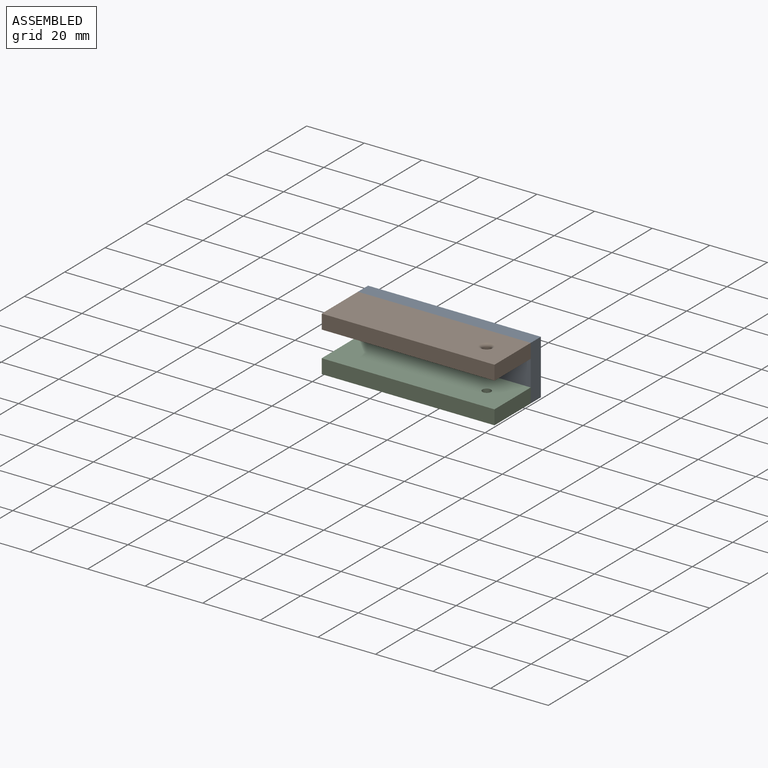
[diagram: assembled view]
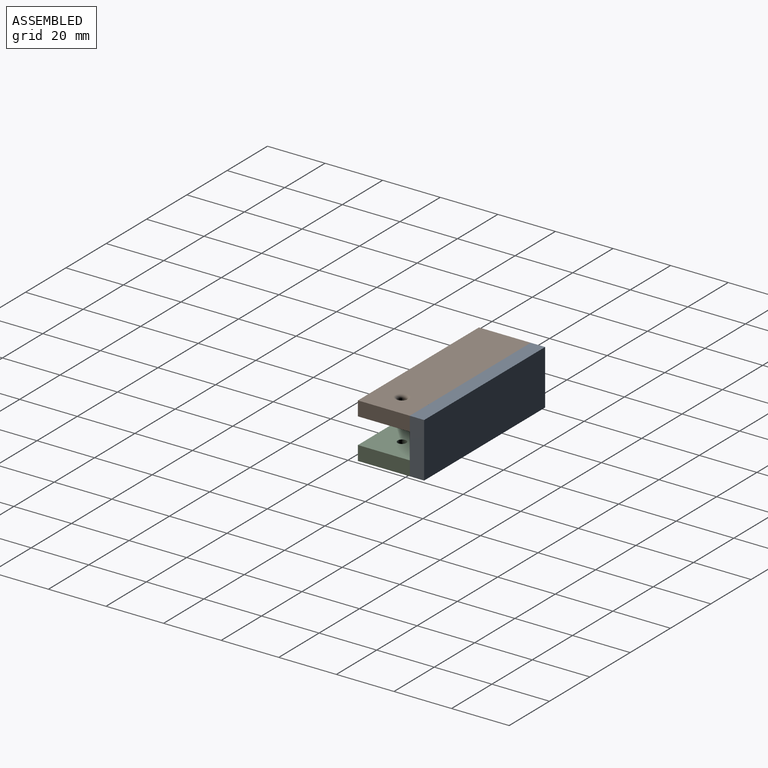
[diagram: assembled view, second angle]
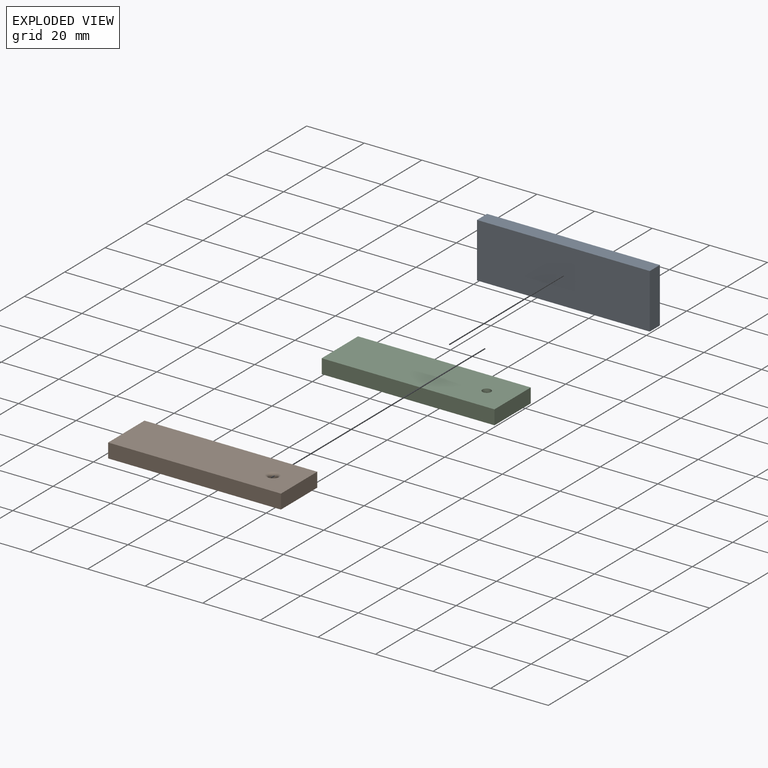
[diagram: exploded view]
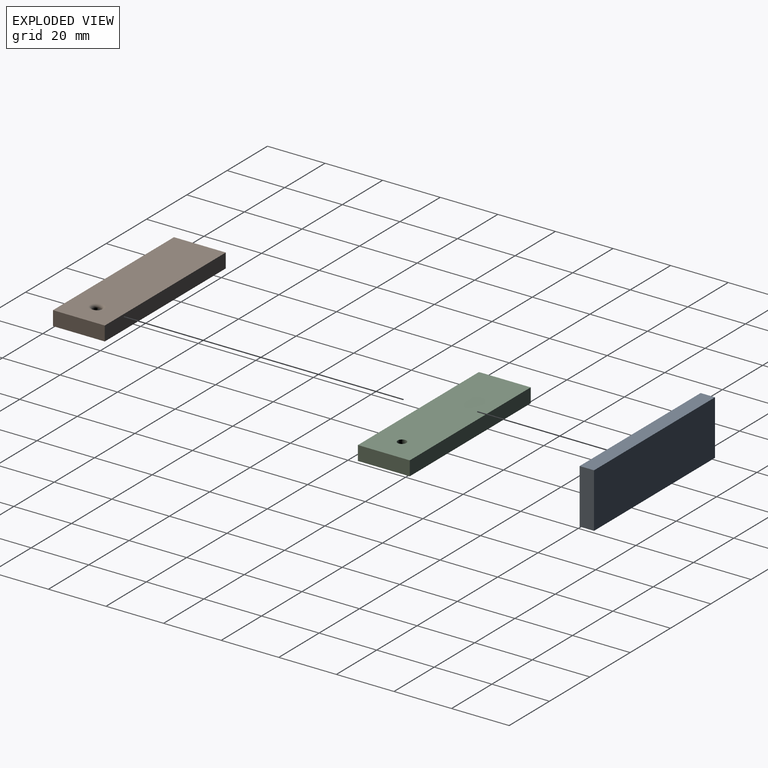
[diagram: exploded view, second angle]
ASSEMBLY  parts=3 mates=2
PART A: 6 faces, bbox 60x5x19 mm
  f0: plane 60x5mm, normal (0,0,1), area 300mm2, adj f1,f3,f4,f5
  f1: plane 19x5mm, normal (-1,0,0), area 95mm2, adj f0,f2,f4,f5
  f2: plane 60x5mm, normal (0,0,-1), area 300mm2, adj f1,f3,f4,f5
  f3: plane 19x5mm, normal (1,0,0), area 95mm2, adj f0,f2,f4,f5
  f4: plane 60x19mm, normal (0,-1,0), area 1140mm2, adj f0,f1,f2,f3
  f5: plane 60x19mm, normal (0,1,0), area 1140mm2, adj f0,f1,f2,f3
PART B: 8 faces, bbox 60x18x5 mm
  f0: plane 60x5mm, normal (0,1,0), area 300mm2, adj f1,f4,f5,f6
  f1: plane 18x5mm, normal (-1,0,0), area 90mm2, adj f0,f2,f5,f6
  f2: plane 60x5mm, normal (0,-1,0), area 300mm2, adj f1,f4,f5,f6
  f3: cylinder r=1.5mm len=4mm, axis (0,0,-1), area 37.7mm2, adj f6,f7
  f4: plane 18x5mm, normal (1,0,0), area 90mm2, adj f0,f2,f5,f6
  f5: plane 60x18mm, normal (0,0,1), area 1060.4mm2, adj f0,f1,f2,f4,f7
  f6: plane 60x18mm, normal (0,0,-1), area 1072.9mm2, adj f0,f1,f2,f3,f4
  f7: torus R=2.5mm, axis (0,0,1), area 18.4mm2, adj f3,f5
PART C: 7 faces, bbox 60x18x5 mm
  f0: plane 60x5mm, normal (0,1,0), area 300mm2, adj f1,f4,f5,f6
  f1: plane 18x5mm, normal (-1,0,0), area 90mm2, adj f0,f2,f5,f6
  f2: plane 60x5mm, normal (0,-1,0), area 300mm2, adj f1,f4,f5,f6
  f3: cylinder r=1.5mm len=5mm, axis (0,0,-1), area 47.1mm2, adj f5,f6
  f4: plane 18x5mm, normal (1,0,0), area 90mm2, adj f0,f2,f5,f6
  f5: plane 60x18mm, normal (0,0,1), area 1072.9mm2, adj f0,f1,f2,f3,f4
  f6: plane 60x18mm, normal (0,0,-1), area 1072.9mm2, adj f0,f1,f2,f3,f4
PLACE A t=(-5.88,6.87,39.52)mm
PLACE B t=(-9.98,4.12,34.35)mm
PLACE C t=(-9.98,4.12,20.35)mm
MATE fastened A.f4 <-> B.f0  axis (0,1,0) through (20.57,1.87,39.35)mm
MATE fastened C.f0 <-> A.f4  axis (0,1,0) through (20.57,1.87,20.35)mm
